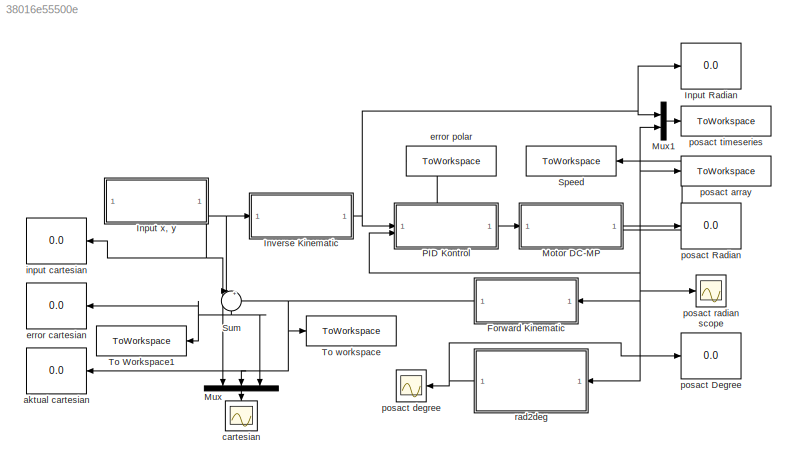
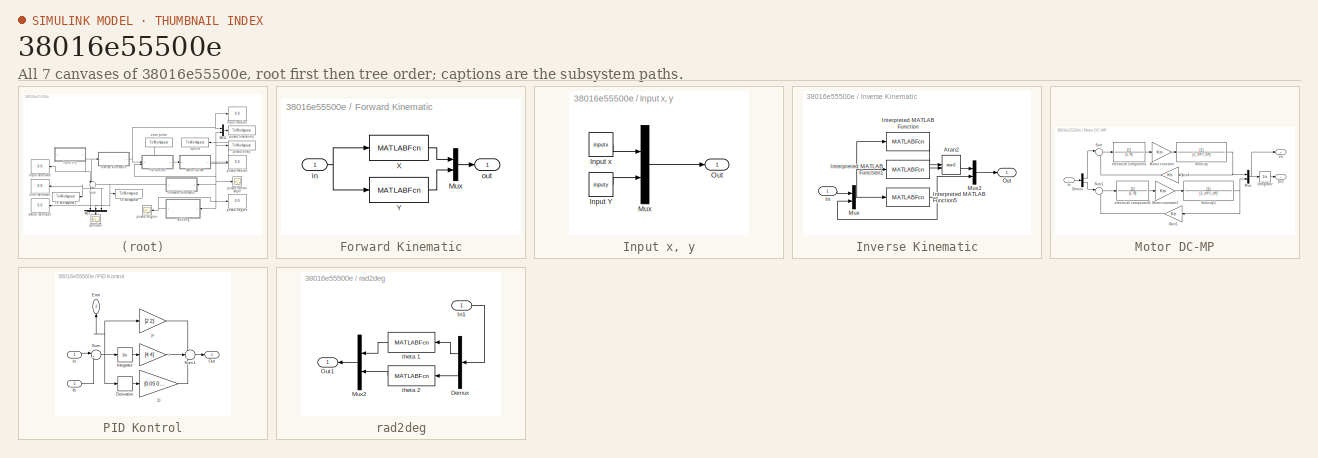
[diagram: thumbnail index - all 7 canvases of the model, root first then tree order]
MODEL slx_38016e55500e
KIND model
CONFIG AbsTol = auto
CONFIG EnableMultiTasking = off
CONFIG FixedStep = auto
CONFIG MaxStep = auto
CONFIG MinStep = auto
CONFIG RelTol = 1e-3
CONFIG SampleTimeConstraint = Unconstrained
CONFIG SolverName = VariableStepAuto
CONFIG StartTime = 0.0
CONFIG StopTime = 10
BLOCK [Display]  posact Degree
  Decimation = 1
BLOCK [SubSystem] Forward Kinematic
BLOCK [Mux] Forward Kinematic/Mux
  DisplayOption = bar
  Inputs = 2
BLOCK [MATLABFcn] Forward Kinematic/X
  MATLABFcn = l1*sin(u(1))+l2*(sin(u(1)+u(2)))
BLOCK [MATLABFcn] Forward Kinematic/Y
  MATLABFcn = l1*cos(u(1))+l2*(cos(u(1)+u(2)))
BLOCK [Inport] Forward Kinematic/in
BLOCK [Outport] Forward Kinematic/out
BLOCK [Display] Input Radian
  Decimation = 1
BLOCK [SubSystem] Input x, y
BLOCK [Constant] Input x, y/Input Y
  Value = inputy
BLOCK [Constant] Input x, y/Input x
  Value = inputx
BLOCK [Mux] Input x, y/Mux
  DisplayOption = bar
  Inputs = 2
BLOCK [Outport] Input x, y/Out
BLOCK [SubSystem] Inverse Kinematic
BLOCK [Trigonometry] Inverse Kinematic/Atan2
  Operator = atan2
BLOCK [Inport] Inverse Kinematic/In
BLOCK [MATLABFcn] Inverse Kinematic/Interpreted MATLAB Function
  MATLABFcn = u(1)*(l1+l2*cos(u(3)))-u(2)*l2*sin(u(3))
BLOCK [MATLABFcn] Inverse Kinematic/Interpreted MATLAB Function1
  MATLABFcn = u(2)*(l1+l2*cos(u(3)))+u(1)*l2*sin(u(3))
BLOCK [MATLABFcn] Inverse Kinematic/Interpreted MATLAB Function5
  MATLABFcn = acos((u(1)^2+u(2)^2-l1^2-l2^2)/(2*l1*l2))
BLOCK [Mux] Inverse Kinematic/Mux
  DisplayOption = bar
  Inputs = 2
BLOCK [Mux] Inverse Kinematic/Mux2
  DisplayOption = bar
  Inputs = 2
BLOCK [Outport] Inverse Kinematic/Out
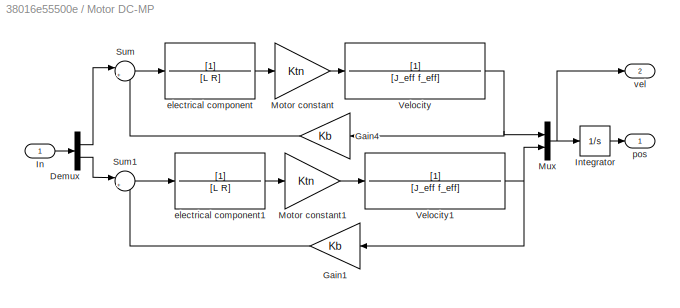
BLOCK [SubSystem] Motor DC-MP
  PortSchema = {"entries":[{"content":{"sides":[{"content":{"connectorIds":["In1"]},"type":"ConnectorPlacement.EquallySpacedRectSide","uuid":"ac7a8215-a36d-4697-93b9-89f5dd1873e2"},{"content":{"connectorIds":["Out1"],"side":"RIGHT"},"type":"ConnectorPlacement.EquallySpacedRectSide","uuid":"e6865d54-49ab-4755-a29e-3873af484436"},{"content":{"connectorIds":["Out2"],"side":"TOP"},"type":"ConnectorPlacement.EquallyS...<+246ch>
BLOCK [Demux] Motor DC-MP/Demux
  Outputs = 2
BLOCK [Gain] Motor DC-MP/Gain1
  Gain = Kb
BLOCK [Gain] Motor DC-MP/Gain4
  Gain = Kb
BLOCK [Inport] Motor DC-MP/In
BLOCK [Integrator] Motor DC-MP/Integrator
BLOCK [Gain] Motor DC-MP/Motor constant
  Gain = Ktn
BLOCK [Gain] Motor DC-MP/Motor constant1
  Gain = Ktn
BLOCK [Mux] Motor DC-MP/Mux
  DisplayOption = bar
  Inputs = 2
BLOCK [Sum] Motor DC-MP/Sum
  Inputs = |+-
BLOCK [Sum] Motor DC-MP/Sum1
  Inputs = |+-
BLOCK [TransferFcn] Motor DC-MP/Velocity
  Denominator = [J_eff f_eff]
BLOCK [TransferFcn] Motor DC-MP/Velocity1
  Denominator = [J_eff f_eff]
BLOCK [TransferFcn] Motor DC-MP/electrical component
  Denominator = [L R]
BLOCK [TransferFcn] Motor DC-MP/electrical component1
  Denominator = [L R]
BLOCK [Outport] Motor DC-MP/pos
BLOCK [Outport] Motor DC-MP/vel
  Port = 2
BLOCK [Mux] Mux
  DisplayOption = bar
  Inputs = 3
  NameLocation = right
BLOCK [Mux] Mux1
  DisplayOption = bar
  Inputs = 2
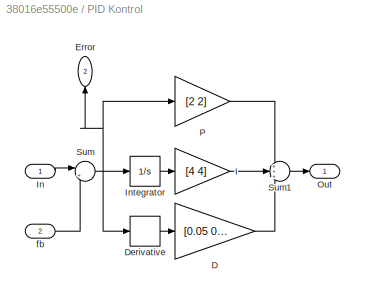
BLOCK [SubSystem] PID Kontrol
  PortSchema = {"entries":[{"content":{"sides":[{"content":{"connectorIds":["In1","In2"]},"type":"ConnectorPlacement.EquallySpacedRectSide","uuid":"555cc180-eba4-4e10-983a-f071b59ba1a6"},{"content":{"connectorIds":["Out1"],"side":"RIGHT"},"type":"ConnectorPlacement.EquallySpacedRectSide","uuid":"484a5ffc-25a4-4c1d-993c-003812c9027a"},{"content":{"connectorIds":["Out2"],"side":"TOP"},"type":"ConnectorPlacement.Eq...<+252ch>
BLOCK [Gain] PID Kontrol/D
  Gain = [0.05 0.05]
BLOCK [Derivative] PID Kontrol/Derivative
BLOCK [Outport] PID Kontrol/Error
  NameLocation = right
  Port = 2
BLOCK [Gain] PID Kontrol/I
  Gain = [4 4]
BLOCK [Inport] PID Kontrol/In
BLOCK [Integrator] PID Kontrol/Integrator
BLOCK [Outport] PID Kontrol/Out
BLOCK [Gain] PID Kontrol/P
  Gain = [2 2]
BLOCK [Sum] PID Kontrol/Sum
  Inputs = |+-
BLOCK [Sum] PID Kontrol/Sum1
  Inputs = +++
BLOCK [Inport] PID Kontrol/fb
  Port = 2
BLOCK [ToWorkspace] Speed
  FixptAsFi = on
  MaxDataPoints = inf
  SampleTime = -1
  Save2DSignal = 2-D array (concatenate along first dimension)
  SaveFormat = Timeseries
  VariableName = vel
BLOCK [Sum] Sum
  Inputs = |+-
  NameLocation = left
BLOCK [ToWorkspace] To Workspace1
  FixptAsFi = on
  MaxDataPoints = inf
  SampleTime = -1
  Save2DSignal = 2-D array (concatenate along first dimension)
  VariableName = error_xy
BLOCK [ToWorkspace] To workspace
  FixptAsFi = on
  MaxDataPoints = inf
  SampleTime = -1
  Save2DSignal = 2-D array (concatenate along first dimension)
  VariableName = posact_xy
BLOCK [Display] aktual cartesian
  Decimation = 1
BLOCK [Scope] cartesian
  Floating = off
  NameLocation = right
  NumInputPorts = 1
  ScopeSpecificationString = Simulink.scopes.TimeScopeBlockCfg('CurrentConfiguration', extmgr.ConfigurationSet(extmgr.Configuration('Core','General UI',true),extmgr.Configuration('Core','Source UI',true),extmgr.Configuration('Sources','WiredSimulink',true),extmgr.Configuration('Visuals','Time Domain',true,'SerializedDisplays',{struct('MinYLimReal','-68.00000','MaxYLimReal','72.00000','YLabelReal','','MinYLimMag','0.00000','Ma...<+1622ch>
BLOCK [Display] error cartesian
  Decimation = 1
BLOCK [ToWorkspace] error polar
  FixptAsFi = on
  MaxDataPoints = inf
  SampleTime = -1
  Save2DSignal = 2-D array (concatenate along first dimension)
  SaveFormat = Timeseries
  VariableName = err
BLOCK [Display] input cartesian
  Decimation = 1
BLOCK [Display] posact Radian
  Decimation = 1
BLOCK [ToWorkspace] posact array
  FixptAsFi = on
  MaxDataPoints = inf
  SampleTime = -1
  Save2DSignal = 2-D array (concatenate along first dimension)
  VariableName = posact
BLOCK [Scope] posact degree
  Floating = off
  NumInputPorts = 1
  ScopeSpecificationString = Simulink.scopes.TimeScopeBlockCfg('CurrentConfiguration', extmgr.ConfigurationSet(extmgr.Configuration('Core','General UI',true),extmgr.Configuration('Core','Source UI',true),extmgr.Configuration('Sources','WiredSimulink',true,'DataLoggingVariableName','ScopeData2'),extmgr.Configuration('Visuals','Time Domain',true,'SerializedDisplays',{struct('MinYLimReal','-129.35172','MaxYLimReal','150.77614','...<+1599ch>
BLOCK [Scope] posact radian scope
  Floating = off
  NumInputPorts = 1
  ScopeSpecificationString = Simulink.scopes.TimeScopeBlockCfg('CurrentConfiguration', extmgr.ConfigurationSet(extmgr.Configuration('Core','General UI',true),extmgr.Configuration('Core','Source UI',true),extmgr.Configuration('Sources','WiredSimulink',true,'DataLoggingVariableName','ScopeData1'),extmgr.Configuration('Visuals','Time Domain',true,'SerializedDisplays',{struct('MinYLimReal','-2.25761','MaxYLimReal','2.63154','YLab...<+1418ch>
BLOCK [ToWorkspace] posact timeseries
  FixptAsFi = on
  MaxDataPoints = inf
  SampleTime = -1
  Save2DSignal = 2-D array (concatenate along first dimension)
  SaveFormat = Timeseries
  VariableName = posact_time
BLOCK [SubSystem] rad2deg
BLOCK [Demux] rad2deg/Demux
  Outputs = 2
BLOCK [Inport] rad2deg/In1
BLOCK [Mux] rad2deg/Mux2
  DisplayOption = bar
  Inputs = 2
BLOCK [Outport] rad2deg/Out1
BLOCK [MATLABFcn] rad2deg/theta 1
  MATLABFcn = u*180/pi
BLOCK [MATLABFcn] rad2deg/theta 2
  MATLABFcn = u*180/pi
LINE Forward Kinematic/Mux:1 -> Forward Kinematic/out:1
LINE Forward Kinematic/X:1 -> Forward Kinematic/Mux:1
LINE Forward Kinematic/Y:1 -> Forward Kinematic/Mux:2
NET Forward Kinematic/in:1 -> Forward Kinematic/X:1, Forward Kinematic/Y:1
NET Forward Kinematic:1 -> Mux:2, Sum:2, To workspace:1, aktual cartesian:1
LINE Input x, y/Input Y:1 -> Input x, y/Mux:2
LINE Input x, y/Input x:1 -> Input x, y/Mux:1
LINE Input x, y/Mux:1 -> Input x, y/Out:1
NET Input x, y:1 -> Inverse Kinematic:1, Mux:1, Sum:1, input cartesian:1
LINE Inverse Kinematic/Atan2:1 -> Inverse Kinematic/Mux2:1
LINE Inverse Kinematic/In:1 -> Inverse Kinematic/Mux:1
LINE Inverse Kinematic/Interpreted MATLAB Function1:1 -> Inverse Kinematic/Atan2:2
NET Inverse Kinematic/Interpreted MATLAB Function5:1 -> Inverse Kinematic/Mux2:2, Inverse Kinematic/Mux:2
LINE Inverse Kinematic/Interpreted MATLAB Function:1 -> Inverse Kinematic/Atan2:1
LINE Inverse Kinematic/Mux2:1 -> Inverse Kinematic/Out:1
NET Inverse Kinematic/Mux:1 -> Inverse Kinematic/Interpreted MATLAB Function1:1, Inverse Kinematic/Interpreted MATLAB Function5:1, Inverse Kinematic/Interpreted MATLAB Function:1
NET Inverse Kinematic:1 -> Input Radian:1, Mux1:1, PID Kontrol:1
LINE Motor DC-MP/Demux:1 -> Motor DC-MP/Sum:1
LINE Motor DC-MP/Demux:2 -> Motor DC-MP/Sum1:1
LINE Motor DC-MP/Gain1:1 -> Motor DC-MP/Sum1:2
LINE Motor DC-MP/Gain4:1 -> Motor DC-MP/Sum:2
LINE Motor DC-MP/In:1 -> Motor DC-MP/Demux:1
LINE Motor DC-MP/Integrator:1 -> Motor DC-MP/pos:1
LINE Motor DC-MP/Motor constant1:1 -> Motor DC-MP/Velocity1:1
LINE Motor DC-MP/Motor constant:1 -> Motor DC-MP/Velocity:1
NET Motor DC-MP/Mux:1 -> Motor DC-MP/Integrator:1, Motor DC-MP/vel:1
LINE Motor DC-MP/Sum1:1 -> Motor DC-MP/electrical component1:1
LINE Motor DC-MP/Sum:1 -> Motor DC-MP/electrical component:1
NET Motor DC-MP/Velocity1:1 -> Motor DC-MP/Gain1:1, Motor DC-MP/Mux:2
NET Motor DC-MP/Velocity:1 -> Motor DC-MP/Gain4:1, Motor DC-MP/Mux:1
LINE Motor DC-MP/electrical component1:1 -> Motor DC-MP/Motor constant1:1
LINE Motor DC-MP/electrical component:1 -> Motor DC-MP/Motor constant:1
NET Motor DC-MP:1 -> Forward Kinematic:1, Mux1:2, PID Kontrol:2, posact Radian:1, posact array:1, posact radian scope:1, rad2deg:1
LINE Motor DC-MP:2 -> Speed:1
LINE Mux1:1 -> posact timeseries:1
LINE Mux:1 -> cartesian:1
LINE PID Kontrol/D:1 -> PID Kontrol/Sum1:3
LINE PID Kontrol/Derivative:1 -> PID Kontrol/D:1
LINE PID Kontrol/I:1 -> PID Kontrol/Sum1:2
LINE PID Kontrol/In:1 -> PID Kontrol/Sum:1
LINE PID Kontrol/Integrator:1 -> PID Kontrol/I:1
LINE PID Kontrol/P:1 -> PID Kontrol/Sum1:1
LINE PID Kontrol/Sum1:1 -> PID Kontrol/Out:1
NET PID Kontrol/Sum:1 -> PID Kontrol/Derivative:1, PID Kontrol/Error:1, PID Kontrol/Integrator:1, PID Kontrol/P:1
LINE PID Kontrol/fb:1 -> PID Kontrol/Sum:2
LINE PID Kontrol:1 -> Motor DC-MP:1
LINE PID Kontrol:2 -> error polar:1
NET Sum:1 -> Mux:3, To Workspace1:1, error cartesian:1
LINE rad2deg/Demux:1 -> rad2deg/theta 1:1
LINE rad2deg/Demux:2 -> rad2deg/theta 2:1
LINE rad2deg/In1:1 -> rad2deg/Demux:1
LINE rad2deg/Mux2:1 -> rad2deg/Out1:1
LINE rad2deg/theta 1:1 -> rad2deg/Mux2:1
LINE rad2deg/theta 2:1 -> rad2deg/Mux2:2
NET rad2deg:1 ->  posact Degree:1, posact degree:1
note: NET lines group one-source signal fan-out (src -> all destinations, sorted); 1:1 wires keep LINE
